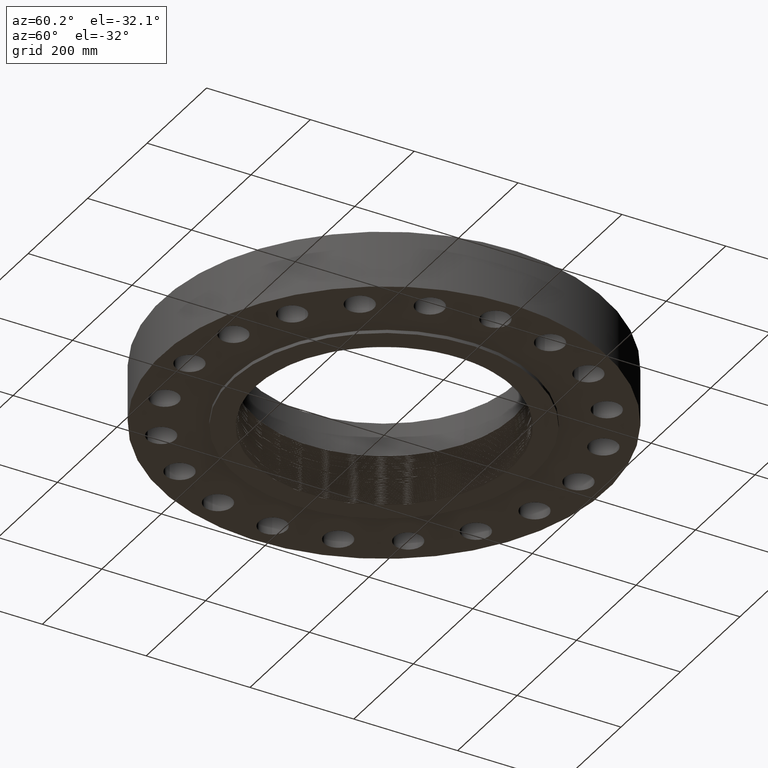
[diagram: clean part render]
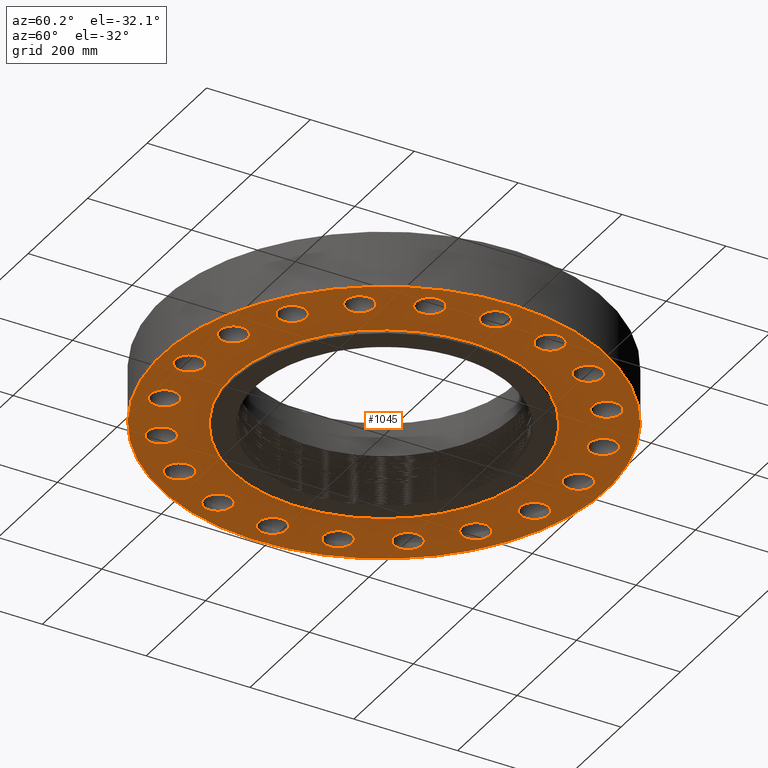
[diagram: same view with one face highlighted and labeled with its STEP entity id]
A machine part, auxiliary view. The second image highlights one B-rep face of the part: STEP entity #1045.
In plain terms, the highlighted planar face has unit normal (0, 0, -1).
Its self-contained STEP definition (entity closure, byte-faithful):
#402=AXIS2_PLACEMENT_3D('Circle Axis2P3D',#400,#401,$) ;
#428=AXIS2_PLACEMENT_3D('Circle Axis2P3D',#426,#427,$) ;
#450=AXIS2_PLACEMENT_3D('Circle Axis2P3D',#448,#449,$) ;
#485=AXIS2_PLACEMENT_3D('Circle Axis2P3D',#483,#484,$) ;
#657=AXIS2_PLACEMENT_3D('Circle Axis2P3D',#655,#656,$) ;
#676=AXIS2_PLACEMENT_3D('Circle Axis2P3D',#674,#675,$) ;
#689=AXIS2_PLACEMENT_3D('Plane Axis2P3D',#686,#687,#688) ;
#705=AXIS2_PLACEMENT_3D('Circle Axis2P3D',#703,#704,$) ;
#714=AXIS2_PLACEMENT_3D('Circle Axis2P3D',#712,#713,$) ;
#723=AXIS2_PLACEMENT_3D('Circle Axis2P3D',#721,#722,$) ;
#732=AXIS2_PLACEMENT_3D('Circle Axis2P3D',#730,#731,$) ;
#741=AXIS2_PLACEMENT_3D('Circle Axis2P3D',#739,#740,$) ;
#750=AXIS2_PLACEMENT_3D('Circle Axis2P3D',#748,#749,$) ;
#759=AXIS2_PLACEMENT_3D('Circle Axis2P3D',#757,#758,$) ;
#768=AXIS2_PLACEMENT_3D('Circle Axis2P3D',#766,#767,$) ;
#777=AXIS2_PLACEMENT_3D('Circle Axis2P3D',#775,#776,$) ;
#786=AXIS2_PLACEMENT_3D('Circle Axis2P3D',#784,#785,$) ;
#795=AXIS2_PLACEMENT_3D('Circle Axis2P3D',#793,#794,$) ;
#804=AXIS2_PLACEMENT_3D('Circle Axis2P3D',#802,#803,$) ;
#813=AXIS2_PLACEMENT_3D('Circle Axis2P3D',#811,#812,$) ;
#822=AXIS2_PLACEMENT_3D('Circle Axis2P3D',#820,#821,$) ;
#831=AXIS2_PLACEMENT_3D('Circle Axis2P3D',#829,#830,$) ;
#840=AXIS2_PLACEMENT_3D('Circle Axis2P3D',#838,#839,$) ;
#849=AXIS2_PLACEMENT_3D('Circle Axis2P3D',#847,#848,$) ;
#858=AXIS2_PLACEMENT_3D('Circle Axis2P3D',#856,#857,$) ;
#867=AXIS2_PLACEMENT_3D('Circle Axis2P3D',#865,#866,$) ;
#876=AXIS2_PLACEMENT_3D('Circle Axis2P3D',#874,#875,$) ;
#885=AXIS2_PLACEMENT_3D('Circle Axis2P3D',#883,#884,$) ;
#894=AXIS2_PLACEMENT_3D('Circle Axis2P3D',#892,#893,$) ;
#903=AXIS2_PLACEMENT_3D('Circle Axis2P3D',#901,#902,$) ;
#912=AXIS2_PLACEMENT_3D('Circle Axis2P3D',#910,#911,$) ;
#921=AXIS2_PLACEMENT_3D('Circle Axis2P3D',#919,#920,$) ;
#930=AXIS2_PLACEMENT_3D('Circle Axis2P3D',#928,#929,$) ;
#939=AXIS2_PLACEMENT_3D('Circle Axis2P3D',#937,#938,$) ;
#948=AXIS2_PLACEMENT_3D('Circle Axis2P3D',#946,#947,$) ;
#957=AXIS2_PLACEMENT_3D('Circle Axis2P3D',#955,#956,$) ;
#966=AXIS2_PLACEMENT_3D('Circle Axis2P3D',#964,#965,$) ;
#975=AXIS2_PLACEMENT_3D('Circle Axis2P3D',#973,#974,$) ;
#984=AXIS2_PLACEMENT_3D('Circle Axis2P3D',#982,#983,$) ;
#993=AXIS2_PLACEMENT_3D('Circle Axis2P3D',#991,#992,$) ;
#1002=AXIS2_PLACEMENT_3D('Circle Axis2P3D',#1000,#1001,$) ;
#1011=AXIS2_PLACEMENT_3D('Circle Axis2P3D',#1009,#1010,$) ;
#1020=AXIS2_PLACEMENT_3D('Circle Axis2P3D',#1018,#1019,$) ;
#1029=AXIS2_PLACEMENT_3D('Circle Axis2P3D',#1027,#1028,$) ;
#1038=AXIS2_PLACEMENT_3D('Circle Axis2P3D',#1036,#1037,$) ;
#395=CARTESIAN_POINT('Vertex',(13.8153745716,0.510588198616,0.)) ;
#400=CARTESIAN_POINT('Axis2P3D Location',(14.7500000001,0.,0.)) ;
#404=CARTESIAN_POINT('Vertex',(15.6846254285,-0.510588198616,0.)) ;
#426=CARTESIAN_POINT('Axis2P3D Location',(14.7500000001,0.,0.)) ;
#448=CARTESIAN_POINT('Axis2P3D Location',(0.,0.,2.23792987641E-015)) ;
#452=CARTESIAN_POINT('Vertex',(-8.09030596398,-14.809205732,2.23792987641E-015)) ;
#454=CARTESIAN_POINT('Vertex',(8.09030596398,14.809205732,2.23792987641E-015)) ;
#483=CARTESIAN_POINT('Axis2P3D Location',(0.,0.,2.23792987641E-015)) ;
#652=CARTESIAN_POINT('Vertex',(-5.51339369397,-10.0921994618,1.1189649382E-015)) ;
#655=CARTESIAN_POINT('Axis2P3D Location',(0.,0.,1.67844740731E-015)) ;
#659=CARTESIAN_POINT('Vertex',(5.51339369397,10.0921994618,1.1189649382E-015)) ;
#674=CARTESIAN_POINT('Axis2P3D Location',(0.,0.,1.67844740731E-015)) ;
#686=CARTESIAN_POINT('Axis2P3D Location',(0.,11.5,0.)) ;
#703=CARTESIAN_POINT('Axis2P3D Location',(14.0280836154,-4.55800066705,0.)) ;
#707=CARTESIAN_POINT('Vertex',(13.2969824419,-3.78358729286,0.)) ;
#709=CARTESIAN_POINT('Vertex',(14.7591847889,-5.33241404124,0.)) ;
#712=CARTESIAN_POINT('Axis2P3D Location',(14.0280836154,-4.55800066705,0.)) ;
#721=CARTESIAN_POINT('Axis2P3D Location',(11.9330006671,-8.66983247135,0.)) ;
#725=CARTESIAN_POINT('Vertex',(11.4769890253,-7.7073988983,0.)) ;
#727=CARTESIAN_POINT('Vertex',(12.3890123089,-9.6322660444,-3.35689481461E-015)) ;
#730=CARTESIAN_POINT('Axis2P3D Location',(11.9330006671,-8.66983247135,0.)) ;
#739=CARTESIAN_POINT('Axis2P3D Location',(8.66983247135,-11.9330006671,0.)) ;
#743=CARTESIAN_POINT('Vertex',(8.53354795791,-10.876756599,0.)) ;
#745=CARTESIAN_POINT('Vertex',(8.80611698478,-12.9892447352,0.)) ;
#748=CARTESIAN_POINT('Axis2P3D Location',(8.66983247135,-11.9330006671,0.)) ;
#757=CARTESIAN_POINT('Axis2P3D Location',(4.55800066705,-14.0280836154,0.)) ;
#761=CARTESIAN_POINT('Vertex',(4.75478375973,-12.9814215809,0.)) ;
#763=CARTESIAN_POINT('Vertex',(4.36121757437,-15.0747456499,0.)) ;
#766=CARTESIAN_POINT('Axis2P3D Location',(4.55800066705,-14.0280836154,0.)) ;
#775=CARTESIAN_POINT('Axis2P3D Location',(6.8536602465E-015,-14.7500000001,0.)) ;
#779=CARTESIAN_POINT('Vertex',(0.510588198616,-13.8153745716,0.)) ;
#781=CARTESIAN_POINT('Vertex',(-0.510588198616,-15.6846254285,0.)) ;
#784=CARTESIAN_POINT('Axis2P3D Location',(5.7346953083E-015,-14.7500000001,0.)) ;
#793=CARTESIAN_POINT('Axis2P3D Location',(-4.55800066705,-14.0280836154,0.)) ;
#797=CARTESIAN_POINT('Vertex',(-3.78358729286,-13.2969824419,0.)) ;
#799=CARTESIAN_POINT('Vertex',(-5.33241404124,-14.7591847889,0.)) ;
#802=CARTESIAN_POINT('Axis2P3D Location',(-4.55800066705,-14.0280836154,0.)) ;
#811=CARTESIAN_POINT('Axis2P3D Location',(-8.66983247135,-11.9330006671,0.)) ;
#815=CARTESIAN_POINT('Vertex',(-7.7073988983,-11.4769890253,0.)) ;
#817=CARTESIAN_POINT('Vertex',(-9.6322660444,-12.3890123089,0.)) ;
#820=CARTESIAN_POINT('Axis2P3D Location',(-8.66983247135,-11.9330006671,0.)) ;
#829=CARTESIAN_POINT('Axis2P3D Location',(-11.9330006671,-8.66983247135,0.)) ;
#833=CARTESIAN_POINT('Vertex',(-10.876756599,-8.53354795791,0.)) ;
#835=CARTESIAN_POINT('Vertex',(-12.9892447352,-8.80611698478,0.)) ;
#838=CARTESIAN_POINT('Axis2P3D Location',(-11.9330006671,-8.66983247135,0.)) ;
#847=CARTESIAN_POINT('Axis2P3D Location',(-14.0280836154,-4.55800066705,0.)) ;
#851=CARTESIAN_POINT('Vertex',(-12.9814215809,-4.75478375973,0.)) ;
#853=CARTESIAN_POINT('Vertex',(-15.0747456499,-4.36121757437,0.)) ;
#856=CARTESIAN_POINT('Axis2P3D Location',(-14.0280836154,-4.55800066705,0.)) ;
#865=CARTESIAN_POINT('Axis2P3D Location',(-14.7500000001,-8.95171950564E-015,0.)) ;
#869=CARTESIAN_POINT('Vertex',(-13.8153745716,-0.510588198616,0.)) ;
#871=CARTESIAN_POINT('Vertex',(-15.6846254285,0.510588198616,0.)) ;
#874=CARTESIAN_POINT('Axis2P3D Location',(-14.7500000001,-8.95171950564E-015,0.)) ;
#883=CARTESIAN_POINT('Axis2P3D Location',(-14.0280836154,4.55800066705,0.)) ;
#887=CARTESIAN_POINT('Vertex',(-13.2969824419,3.78358729286,0.)) ;
#889=CARTESIAN_POINT('Vertex',(-14.7591847889,5.33241404124,0.)) ;
#892=CARTESIAN_POINT('Axis2P3D Location',(-14.0280836154,4.55800066705,0.)) ;
#901=CARTESIAN_POINT('Axis2P3D Location',(-11.9330006671,8.66983247135,0.)) ;
#905=CARTESIAN_POINT('Vertex',(-11.4769890253,7.7073988983,0.)) ;
#907=CARTESIAN_POINT('Vertex',(-12.3890123089,9.6322660444,-3.35689481461E-015)) ;
#910=CARTESIAN_POINT('Axis2P3D Location',(-11.9330006671,8.66983247135,0.)) ;
#919=CARTESIAN_POINT('Axis2P3D Location',(-8.66983247135,11.9330006671,0.)) ;
#923=CARTESIAN_POINT('Vertex',(-8.53354795791,10.876756599,0.)) ;
#925=CARTESIAN_POINT('Vertex',(-8.80611698478,12.9892447352,0.)) ;
#928=CARTESIAN_POINT('Axis2P3D Location',(-8.66983247135,11.9330006671,0.)) ;
#937=CARTESIAN_POINT('Axis2P3D Location',(-4.55800066705,14.0280836154,0.)) ;
#941=CARTESIAN_POINT('Vertex',(-4.75478375973,12.9814215809,0.)) ;
#943=CARTESIAN_POINT('Vertex',(-4.36121757437,15.0747456499,-3.35689481461E-015)) ;
#946=CARTESIAN_POINT('Axis2P3D Location',(-4.55800066705,14.0280836154,0.)) ;
#955=CARTESIAN_POINT('Axis2P3D Location',(-1.72040859249E-014,14.7500000001,0.)) ;
#959=CARTESIAN_POINT('Vertex',(-0.510588198616,13.8153745716,0.)) ;
#961=CARTESIAN_POINT('Vertex',(0.510588198616,15.6846254285,0.)) ;
#964=CARTESIAN_POINT('Axis2P3D Location',(-1.44066735794E-014,14.7500000001,0.)) ;
#973=CARTESIAN_POINT('Axis2P3D Location',(4.55800066705,14.0280836154,0.)) ;
#977=CARTESIAN_POINT('Vertex',(3.78358729286,13.2969824419,0.)) ;
#979=CARTESIAN_POINT('Vertex',(5.33241404124,14.7591847889,-3.35689481461E-015)) ;
#982=CARTESIAN_POINT('Axis2P3D Location',(4.55800066705,14.0280836154,0.)) ;
#991=CARTESIAN_POINT('Axis2P3D Location',(8.66983247135,11.9330006671,0.)) ;
#995=CARTESIAN_POINT('Vertex',(7.7073988983,11.4769890253,0.)) ;
#997=CARTESIAN_POINT('Vertex',(9.6322660444,12.3890123089,0.)) ;
#1000=CARTESIAN_POINT('Axis2P3D Location',(8.66983247135,11.9330006671,0.)) ;
#1009=CARTESIAN_POINT('Axis2P3D Location',(11.9330006671,8.66983247135,0.)) ;
#1013=CARTESIAN_POINT('Vertex',(10.876756599,8.53354795791,0.)) ;
#1015=CARTESIAN_POINT('Vertex',(12.9892447352,8.80611698478,0.)) ;
#1018=CARTESIAN_POINT('Axis2P3D Location',(11.9330006671,8.66983247135,0.)) ;
#1027=CARTESIAN_POINT('Axis2P3D Location',(14.0280836154,4.55800066705,0.)) ;
#1031=CARTESIAN_POINT('Vertex',(12.9814215809,4.75478375973,0.)) ;
#1033=CARTESIAN_POINT('Vertex',(15.0747456499,4.36121757437,-3.35689481461E-015)) ;
#1036=CARTESIAN_POINT('Axis2P3D Location',(14.0280836154,4.55800066705,0.)) ;
#401=DIRECTION('Axis2P3D Direction',(0.,-0.,-0.0393700787402)) ;
#427=DIRECTION('Axis2P3D Direction',(0.,-0.,-0.0393700787402)) ;
#449=DIRECTION('Axis2P3D Direction',(0.,0.,-0.0393700787402)) ;
#484=DIRECTION('Axis2P3D Direction',(0.,0.,-0.0393700787402)) ;
#656=DIRECTION('Axis2P3D Direction',(0.,0.,-0.0393700787402)) ;
#675=DIRECTION('Axis2P3D Direction',(0.,0.,-0.0393700787402)) ;
#687=DIRECTION('Axis2P3D Direction',(0.,0.,-0.0393700787402)) ;
#688=DIRECTION('Axis2P3D XDirection',(0.0393700787402,0.,0.)) ;
#704=DIRECTION('Axis2P3D Direction',(0.,0.,-0.0393700787402)) ;
#713=DIRECTION('Axis2P3D Direction',(0.,0.,-0.0393700787402)) ;
#722=DIRECTION('Axis2P3D Direction',(0.,0.,-0.0393700787402)) ;
#731=DIRECTION('Axis2P3D Direction',(0.,0.,-0.0393700787402)) ;
#740=DIRECTION('Axis2P3D Direction',(0.,0.,-0.0393700787402)) ;
#749=DIRECTION('Axis2P3D Direction',(0.,0.,-0.0393700787402)) ;
#758=DIRECTION('Axis2P3D Direction',(0.,0.,-0.0393700787402)) ;
#767=DIRECTION('Axis2P3D Direction',(0.,0.,-0.0393700787402)) ;
#776=DIRECTION('Axis2P3D Direction',(0.,0.,-0.0393700787402)) ;
#785=DIRECTION('Axis2P3D Direction',(0.,0.,-0.0393700787402)) ;
#794=DIRECTION('Axis2P3D Direction',(0.,0.,-0.0393700787402)) ;
#803=DIRECTION('Axis2P3D Direction',(0.,0.,-0.0393700787402)) ;
#812=DIRECTION('Axis2P3D Direction',(0.,0.,-0.0393700787402)) ;
#821=DIRECTION('Axis2P3D Direction',(0.,0.,-0.0393700787402)) ;
#830=DIRECTION('Axis2P3D Direction',(0.,0.,-0.0393700787402)) ;
#839=DIRECTION('Axis2P3D Direction',(0.,0.,-0.0393700787402)) ;
#848=DIRECTION('Axis2P3D Direction',(0.,0.,-0.0393700787402)) ;
#857=DIRECTION('Axis2P3D Direction',(0.,0.,-0.0393700787402)) ;
#866=DIRECTION('Axis2P3D Direction',(0.,0.,-0.0393700787402)) ;
#875=DIRECTION('Axis2P3D Direction',(0.,0.,-0.0393700787402)) ;
#884=DIRECTION('Axis2P3D Direction',(0.,0.,-0.0393700787402)) ;
#893=DIRECTION('Axis2P3D Direction',(0.,0.,-0.0393700787402)) ;
#902=DIRECTION('Axis2P3D Direction',(0.,0.,-0.0393700787402)) ;
#911=DIRECTION('Axis2P3D Direction',(0.,0.,-0.0393700787402)) ;
#920=DIRECTION('Axis2P3D Direction',(0.,0.,-0.0393700787402)) ;
#929=DIRECTION('Axis2P3D Direction',(0.,0.,-0.0393700787402)) ;
#938=DIRECTION('Axis2P3D Direction',(0.,0.,-0.0393700787402)) ;
#947=DIRECTION('Axis2P3D Direction',(0.,0.,-0.0393700787402)) ;
#956=DIRECTION('Axis2P3D Direction',(0.,0.,-0.0393700787402)) ;
#965=DIRECTION('Axis2P3D Direction',(0.,0.,-0.0393700787402)) ;
#974=DIRECTION('Axis2P3D Direction',(0.,0.,-0.0393700787402)) ;
#983=DIRECTION('Axis2P3D Direction',(0.,0.,-0.0393700787402)) ;
#992=DIRECTION('Axis2P3D Direction',(0.,0.,-0.0393700787402)) ;
#1001=DIRECTION('Axis2P3D Direction',(0.,0.,-0.0393700787402)) ;
#1010=DIRECTION('Axis2P3D Direction',(0.,0.,-0.0393700787402)) ;
#1019=DIRECTION('Axis2P3D Direction',(0.,0.,-0.0393700787402)) ;
#1028=DIRECTION('Axis2P3D Direction',(0.,0.,-0.0393700787402)) ;
#1037=DIRECTION('Axis2P3D Direction',(0.,0.,-0.0393700787402)) ;
#692=ORIENTED_EDGE('',*,*,#456,.T.) ;
#693=ORIENTED_EDGE('',*,*,#487,.T.) ;
#696=ORIENTED_EDGE('',*,*,#430,.F.) ;
#697=ORIENTED_EDGE('',*,*,#406,.F.) ;
#700=ORIENTED_EDGE('',*,*,#678,.F.) ;
#701=ORIENTED_EDGE('',*,*,#661,.F.) ;
#718=ORIENTED_EDGE('',*,*,#711,.F.) ;
#719=ORIENTED_EDGE('',*,*,#716,.F.) ;
#736=ORIENTED_EDGE('',*,*,#729,.F.) ;
#737=ORIENTED_EDGE('',*,*,#734,.F.) ;
#754=ORIENTED_EDGE('',*,*,#747,.F.) ;
#755=ORIENTED_EDGE('',*,*,#752,.F.) ;
#772=ORIENTED_EDGE('',*,*,#765,.F.) ;
#773=ORIENTED_EDGE('',*,*,#770,.F.) ;
#790=ORIENTED_EDGE('',*,*,#783,.F.) ;
#791=ORIENTED_EDGE('',*,*,#788,.F.) ;
#808=ORIENTED_EDGE('',*,*,#801,.F.) ;
#809=ORIENTED_EDGE('',*,*,#806,.F.) ;
#826=ORIENTED_EDGE('',*,*,#819,.F.) ;
#827=ORIENTED_EDGE('',*,*,#824,.F.) ;
#844=ORIENTED_EDGE('',*,*,#837,.F.) ;
#845=ORIENTED_EDGE('',*,*,#842,.F.) ;
#862=ORIENTED_EDGE('',*,*,#855,.F.) ;
#863=ORIENTED_EDGE('',*,*,#860,.F.) ;
#880=ORIENTED_EDGE('',*,*,#873,.F.) ;
#881=ORIENTED_EDGE('',*,*,#878,.F.) ;
#898=ORIENTED_EDGE('',*,*,#891,.F.) ;
#899=ORIENTED_EDGE('',*,*,#896,.F.) ;
#916=ORIENTED_EDGE('',*,*,#909,.F.) ;
#917=ORIENTED_EDGE('',*,*,#914,.F.) ;
#934=ORIENTED_EDGE('',*,*,#927,.F.) ;
#935=ORIENTED_EDGE('',*,*,#932,.F.) ;
#952=ORIENTED_EDGE('',*,*,#945,.F.) ;
#953=ORIENTED_EDGE('',*,*,#950,.F.) ;
#970=ORIENTED_EDGE('',*,*,#963,.F.) ;
#971=ORIENTED_EDGE('',*,*,#968,.F.) ;
#988=ORIENTED_EDGE('',*,*,#981,.F.) ;
#989=ORIENTED_EDGE('',*,*,#986,.F.) ;
#1006=ORIENTED_EDGE('',*,*,#999,.F.) ;
#1007=ORIENTED_EDGE('',*,*,#1004,.F.) ;
#1024=ORIENTED_EDGE('',*,*,#1017,.F.) ;
#1025=ORIENTED_EDGE('',*,*,#1022,.F.) ;
#1042=ORIENTED_EDGE('',*,*,#1035,.F.) ;
#1043=ORIENTED_EDGE('',*,*,#1040,.F.) ;
#698=FACE_BOUND('',#695,.T.) ;
#702=FACE_BOUND('',#699,.T.) ;
#720=FACE_BOUND('',#717,.T.) ;
#738=FACE_BOUND('',#735,.T.) ;
#756=FACE_BOUND('',#753,.T.) ;
#774=FACE_BOUND('',#771,.T.) ;
#792=FACE_BOUND('',#789,.T.) ;
#810=FACE_BOUND('',#807,.T.) ;
#828=FACE_BOUND('',#825,.T.) ;
#846=FACE_BOUND('',#843,.T.) ;
#864=FACE_BOUND('',#861,.T.) ;
#882=FACE_BOUND('',#879,.T.) ;
#900=FACE_BOUND('',#897,.T.) ;
#918=FACE_BOUND('',#915,.T.) ;
#936=FACE_BOUND('',#933,.T.) ;
#954=FACE_BOUND('',#951,.T.) ;
#972=FACE_BOUND('',#969,.T.) ;
#990=FACE_BOUND('',#987,.T.) ;
#1008=FACE_BOUND('',#1005,.T.) ;
#1026=FACE_BOUND('',#1023,.T.) ;
#1044=FACE_BOUND('',#1041,.T.) ;
#1045=ADVANCED_FACE('PartBody',(#694,#698,#702,#720,#738,#756,#774,#792,#810,#828,#846,#864,#882,#900,#918,#936,#954,#972,#990,#1008,#1026,#1044),#690,.T.) ;
#403=CIRCLE('generated circle',#402,1.065) ;
#429=CIRCLE('generated circle',#428,1.065) ;
#451=CIRCLE('generated circle',#450,16.8750000001) ;
#486=CIRCLE('generated circle',#485,16.8750000001) ;
#658=CIRCLE('generated circle',#657,11.5) ;
#677=CIRCLE('generated circle',#676,11.5) ;
#706=CIRCLE('generated circle',#705,1.065) ;
#715=CIRCLE('generated circle',#714,1.065) ;
#724=CIRCLE('generated circle',#723,1.065) ;
#733=CIRCLE('generated circle',#732,1.065) ;
#742=CIRCLE('generated circle',#741,1.065) ;
#751=CIRCLE('generated circle',#750,1.065) ;
#760=CIRCLE('generated circle',#759,1.065) ;
#769=CIRCLE('generated circle',#768,1.065) ;
#778=CIRCLE('generated circle',#777,1.065) ;
#787=CIRCLE('generated circle',#786,1.065) ;
#796=CIRCLE('generated circle',#795,1.065) ;
#805=CIRCLE('generated circle',#804,1.065) ;
#814=CIRCLE('generated circle',#813,1.065) ;
#823=CIRCLE('generated circle',#822,1.065) ;
#832=CIRCLE('generated circle',#831,1.065) ;
#841=CIRCLE('generated circle',#840,1.065) ;
#850=CIRCLE('generated circle',#849,1.065) ;
#859=CIRCLE('generated circle',#858,1.065) ;
#868=CIRCLE('generated circle',#867,1.065) ;
#877=CIRCLE('generated circle',#876,1.065) ;
#886=CIRCLE('generated circle',#885,1.065) ;
#895=CIRCLE('generated circle',#894,1.065) ;
#904=CIRCLE('generated circle',#903,1.065) ;
#913=CIRCLE('generated circle',#912,1.065) ;
#922=CIRCLE('generated circle',#921,1.065) ;
#931=CIRCLE('generated circle',#930,1.065) ;
#940=CIRCLE('generated circle',#939,1.065) ;
#949=CIRCLE('generated circle',#948,1.065) ;
#958=CIRCLE('generated circle',#957,1.065) ;
#967=CIRCLE('generated circle',#966,1.065) ;
#976=CIRCLE('generated circle',#975,1.065) ;
#985=CIRCLE('generated circle',#984,1.065) ;
#994=CIRCLE('generated circle',#993,1.065) ;
#1003=CIRCLE('generated circle',#1002,1.065) ;
#1012=CIRCLE('generated circle',#1011,1.065) ;
#1021=CIRCLE('generated circle',#1020,1.065) ;
#1030=CIRCLE('generated circle',#1029,1.065) ;
#1039=CIRCLE('generated circle',#1038,1.065) ;
#406=EDGE_CURVE('',#396,#405,#403,.T.) ;
#430=EDGE_CURVE('',#405,#396,#429,.T.) ;
#456=EDGE_CURVE('',#453,#455,#451,.T.) ;
#487=EDGE_CURVE('',#455,#453,#486,.T.) ;
#661=EDGE_CURVE('',#653,#660,#658,.T.) ;
#678=EDGE_CURVE('',#660,#653,#677,.T.) ;
#711=EDGE_CURVE('',#708,#710,#706,.T.) ;
#716=EDGE_CURVE('',#710,#708,#715,.T.) ;
#729=EDGE_CURVE('',#726,#728,#724,.T.) ;
#734=EDGE_CURVE('',#728,#726,#733,.T.) ;
#747=EDGE_CURVE('',#744,#746,#742,.T.) ;
#752=EDGE_CURVE('',#746,#744,#751,.T.) ;
#765=EDGE_CURVE('',#762,#764,#760,.T.) ;
#770=EDGE_CURVE('',#764,#762,#769,.T.) ;
#783=EDGE_CURVE('',#780,#782,#778,.T.) ;
#788=EDGE_CURVE('',#782,#780,#787,.T.) ;
#801=EDGE_CURVE('',#798,#800,#796,.T.) ;
#806=EDGE_CURVE('',#800,#798,#805,.T.) ;
#819=EDGE_CURVE('',#816,#818,#814,.T.) ;
#824=EDGE_CURVE('',#818,#816,#823,.T.) ;
#837=EDGE_CURVE('',#834,#836,#832,.T.) ;
#842=EDGE_CURVE('',#836,#834,#841,.T.) ;
#855=EDGE_CURVE('',#852,#854,#850,.T.) ;
#860=EDGE_CURVE('',#854,#852,#859,.T.) ;
#873=EDGE_CURVE('',#870,#872,#868,.T.) ;
#878=EDGE_CURVE('',#872,#870,#877,.T.) ;
#891=EDGE_CURVE('',#888,#890,#886,.T.) ;
#896=EDGE_CURVE('',#890,#888,#895,.T.) ;
#909=EDGE_CURVE('',#906,#908,#904,.T.) ;
#914=EDGE_CURVE('',#908,#906,#913,.T.) ;
#927=EDGE_CURVE('',#924,#926,#922,.T.) ;
#932=EDGE_CURVE('',#926,#924,#931,.T.) ;
#945=EDGE_CURVE('',#942,#944,#940,.T.) ;
#950=EDGE_CURVE('',#944,#942,#949,.T.) ;
#963=EDGE_CURVE('',#960,#962,#958,.T.) ;
#968=EDGE_CURVE('',#962,#960,#967,.T.) ;
#981=EDGE_CURVE('',#978,#980,#976,.T.) ;
#986=EDGE_CURVE('',#980,#978,#985,.T.) ;
#999=EDGE_CURVE('',#996,#998,#994,.T.) ;
#1004=EDGE_CURVE('',#998,#996,#1003,.T.) ;
#1017=EDGE_CURVE('',#1014,#1016,#1012,.T.) ;
#1022=EDGE_CURVE('',#1016,#1014,#1021,.T.) ;
#1035=EDGE_CURVE('',#1032,#1034,#1030,.T.) ;
#1040=EDGE_CURVE('',#1034,#1032,#1039,.T.) ;
#691=EDGE_LOOP('',(#692,#693)) ;
#695=EDGE_LOOP('',(#696,#697)) ;
#699=EDGE_LOOP('',(#700,#701)) ;
#717=EDGE_LOOP('',(#718,#719)) ;
#735=EDGE_LOOP('',(#736,#737)) ;
#753=EDGE_LOOP('',(#754,#755)) ;
#771=EDGE_LOOP('',(#772,#773)) ;
#789=EDGE_LOOP('',(#790,#791)) ;
#807=EDGE_LOOP('',(#808,#809)) ;
#825=EDGE_LOOP('',(#826,#827)) ;
#843=EDGE_LOOP('',(#844,#845)) ;
#861=EDGE_LOOP('',(#862,#863)) ;
#879=EDGE_LOOP('',(#880,#881)) ;
#897=EDGE_LOOP('',(#898,#899)) ;
#915=EDGE_LOOP('',(#916,#917)) ;
#933=EDGE_LOOP('',(#934,#935)) ;
#951=EDGE_LOOP('',(#952,#953)) ;
#969=EDGE_LOOP('',(#970,#971)) ;
#987=EDGE_LOOP('',(#988,#989)) ;
#1005=EDGE_LOOP('',(#1006,#1007)) ;
#1023=EDGE_LOOP('',(#1024,#1025)) ;
#1041=EDGE_LOOP('',(#1042,#1043)) ;
#694=FACE_OUTER_BOUND('',#691,.T.) ;
#690=PLANE('',#689) ;
#396=VERTEX_POINT('',#395) ;
#405=VERTEX_POINT('',#404) ;
#453=VERTEX_POINT('',#452) ;
#455=VERTEX_POINT('',#454) ;
#653=VERTEX_POINT('',#652) ;
#660=VERTEX_POINT('',#659) ;
#708=VERTEX_POINT('',#707) ;
#710=VERTEX_POINT('',#709) ;
#726=VERTEX_POINT('',#725) ;
#728=VERTEX_POINT('',#727) ;
#744=VERTEX_POINT('',#743) ;
#746=VERTEX_POINT('',#745) ;
#762=VERTEX_POINT('',#761) ;
#764=VERTEX_POINT('',#763) ;
#780=VERTEX_POINT('',#779) ;
#782=VERTEX_POINT('',#781) ;
#798=VERTEX_POINT('',#797) ;
#800=VERTEX_POINT('',#799) ;
#816=VERTEX_POINT('',#815) ;
#818=VERTEX_POINT('',#817) ;
#834=VERTEX_POINT('',#833) ;
#836=VERTEX_POINT('',#835) ;
#852=VERTEX_POINT('',#851) ;
#854=VERTEX_POINT('',#853) ;
#870=VERTEX_POINT('',#869) ;
#872=VERTEX_POINT('',#871) ;
#888=VERTEX_POINT('',#887) ;
#890=VERTEX_POINT('',#889) ;
#906=VERTEX_POINT('',#905) ;
#908=VERTEX_POINT('',#907) ;
#924=VERTEX_POINT('',#923) ;
#926=VERTEX_POINT('',#925) ;
#942=VERTEX_POINT('',#941) ;
#944=VERTEX_POINT('',#943) ;
#960=VERTEX_POINT('',#959) ;
#962=VERTEX_POINT('',#961) ;
#978=VERTEX_POINT('',#977) ;
#980=VERTEX_POINT('',#979) ;
#996=VERTEX_POINT('',#995) ;
#998=VERTEX_POINT('',#997) ;
#1014=VERTEX_POINT('',#1013) ;
#1016=VERTEX_POINT('',#1015) ;
#1032=VERTEX_POINT('',#1031) ;
#1034=VERTEX_POINT('',#1033) ;